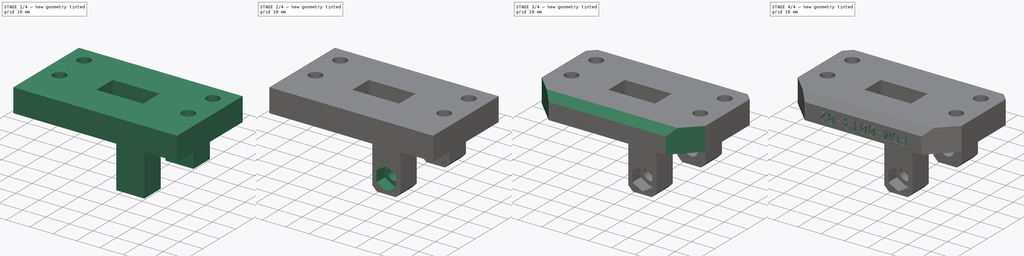
[diagram: build sequence overview — one tinted view per stage of 4, left to right]
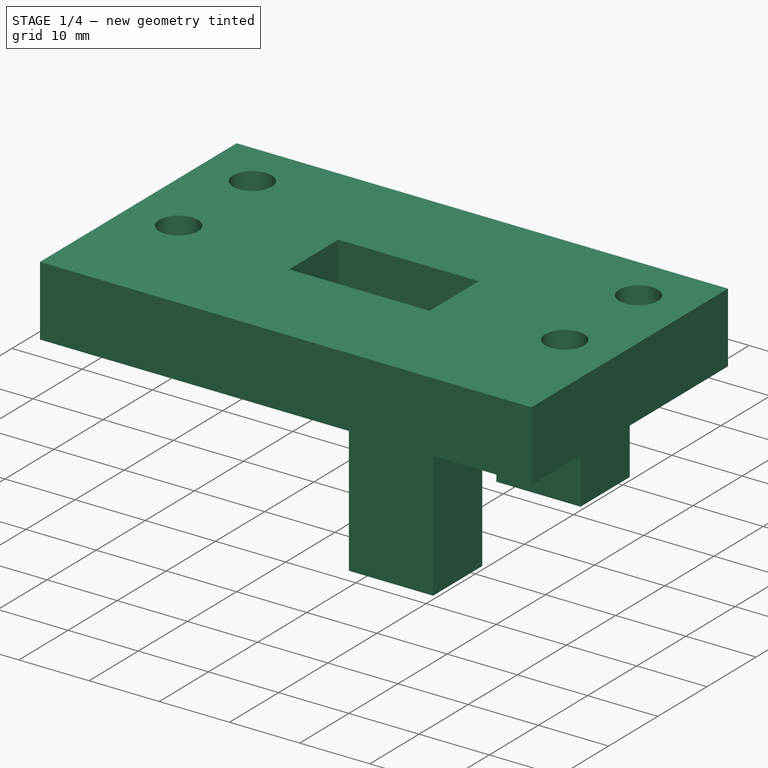
[diagram: stage 1 of 4 — iso view after this stage's code; geometry added in this stage tinted green]
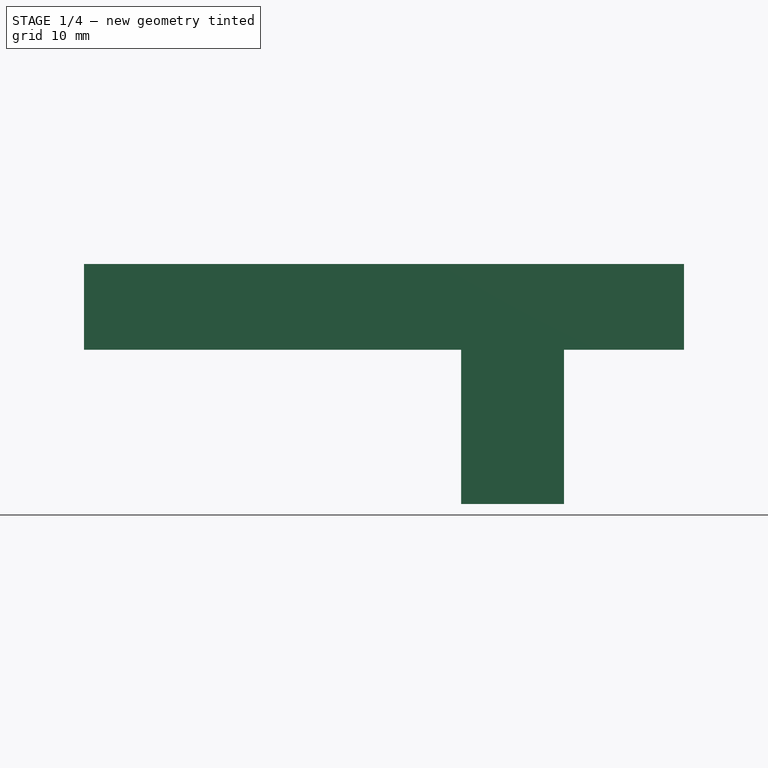
[diagram: stage 1 of 4 — front view after this stage's code; geometry added in this stage tinted green]
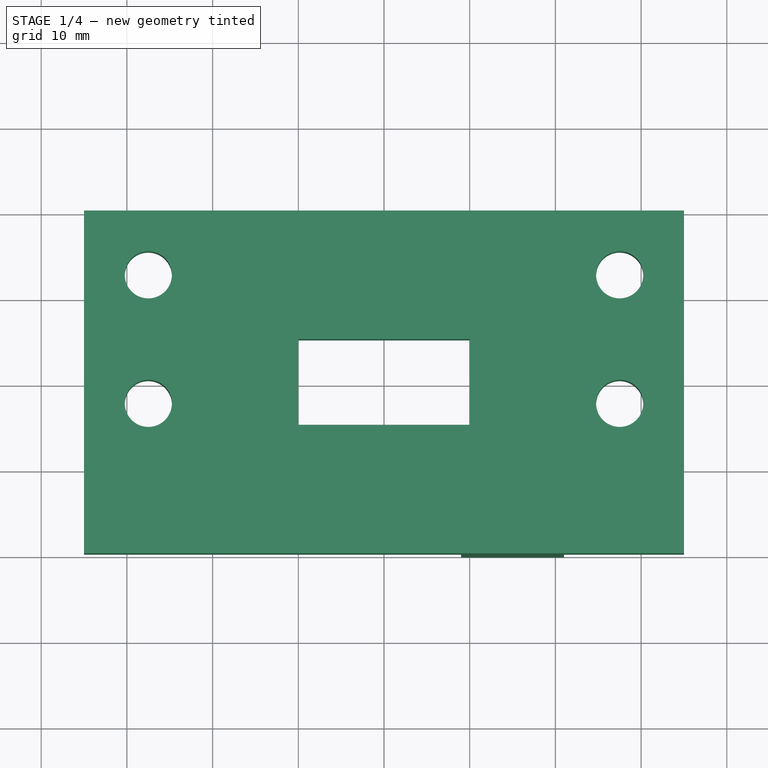
[diagram: stage 1 of 4 — top view after this stage's code; geometry added in this stage tinted green]
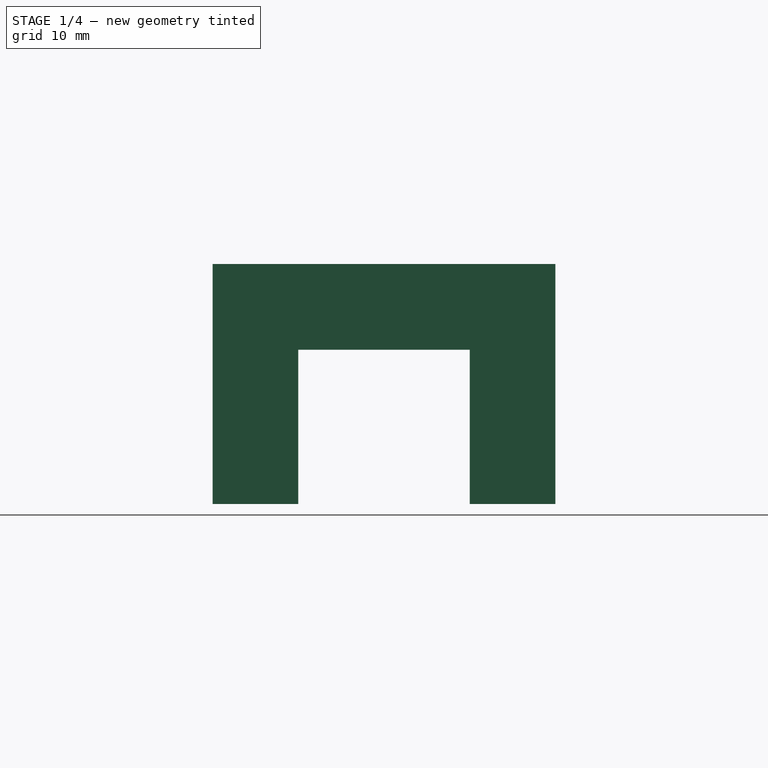
[diagram: stage 1 of 4 — right view after this stage's code; geometry added in this stage tinted green]
FCSTD DOCUMENT  (FreeCAD 0.19R24291 (Git))
Label: FDM-0013_x-idler-mount
License: All rights reserved
LicenseURL: http://en.wikipedia.org/wiki/All_rights_reserved
objects: Sketcher::SketchObject×6, PartDesign::Pocket×5, PartDesign::Chamfer×5, PartDesign::Pad×2, PartDesign::Plane×2, PartDesign::Fillet×1, Part::Part2DObjectPython×1, PartDesign::Body×1
note: 36 computed .brp shape members not serialized (recipe doc carries the construction recipe); baked Part::Feature solids carry a one-line shape summary decoded from their .brp

FEATURE [Sketcher::SketchObject] Sketch
  FullyConstrained = true
  MapMode = 5
  Support = -> [XY_Plane]
  sketch-geometry (12):
    g0: LineSegment StartX=-35 StartY=40 StartZ=0 EndX=35 EndY=40 EndZ=0
    g1: LineSegment StartX=35 StartY=40 StartZ=0 EndX=35 EndY=0 EndZ=0
    g2: LineSegment StartX=35 StartY=0 StartZ=0 EndX=-35 EndY=0 EndZ=0
    g3: LineSegment StartX=-35 StartY=0 StartZ=0 EndX=-35 EndY=40 EndZ=0
    g4: LineSegment StartX=-27.5 StartY=32.5 StartZ=0 EndX=27.5 EndY=32.5 EndZ=0
    g5: LineSegment StartX=27.5 StartY=32.5 StartZ=0 EndX=27.5 EndY=17.5 EndZ=0
    g6: LineSegment StartX=27.5 StartY=17.5 StartZ=0 EndX=-27.5 EndY=17.5 EndZ=0
    g7: LineSegment StartX=-27.5 StartY=17.5 StartZ=0 EndX=-27.5 EndY=32.5 EndZ=0
    g8: Circle CenterX=-27.5 CenterY=32.5 CenterZ=0 NormalX=0 NormalY=0 NormalZ=1 AngleXU=0 Radius=2.75
    g9: Circle CenterX=27.5 CenterY=32.5 CenterZ=0 NormalX=0 NormalY=0 NormalZ=1 AngleXU=0 Radius=2.75
    g10: Circle CenterX=27.5 CenterY=17.5 CenterZ=0 NormalX=0 NormalY=0 NormalZ=1 AngleXU=0 Radius=2.75
    g11: Circle CenterX=-27.5 CenterY=17.5 CenterZ=0 NormalX=0 NormalY=0 NormalZ=1 AngleXU=0 Radius=2.75
  constraints (30):
    c: Coincident(g0,g1)
    c: Coincident(g1,g2)
    c: Coincident(g2,g3)
    c: Coincident(g3,g0)
    c: Horizontal(g0)
    c: Vertical(g1)
    c: Vertical(g3)
    c: Coincident(g4,g5)
    c: Coincident(g5,g6)
    c: Coincident(g6,g7)
    c: Coincident(g7,g4)
    c: Horizontal(g6)
    c: Vertical(g5)
    c: Vertical(g7)
    c: Symmetric(g1,g2,g-2)
    c: Symmetric(g4,g4,g-2)
    c: PointOnObject(g-1,g2)
    c: DistanceX(g2,g2) = 70
    c: DistanceY(g3,g3) = 40
    c: DistanceX(g6,g6) = 55
    c: DistanceY(g5,g5) = 15
    c: DistanceY(g4,g0) = 7.5
    c: Coincident(g8,g4)
    c: Coincident(g9,g4)
    c: Coincident(g10,g5)
    c: Coincident(g11,g6)
    c: Diameter(g8) = 5.5
    c: Diameter(g9) = 5.5
    c: Diameter(g11) = 5.5
    c: Diameter(g10) = 5.5
FEATURE [PartDesign::Pad] Pad
  AllowMultiFace = false
  Direction = (1,1,1)
  Length = 10
  Length2 = 100
  Profile = -> Sketch
  Type = 0
FEATURE [Sketcher::SketchObject] Sketch001
  FullyConstrained = true
  MapMode = 5
  Support = -> [XY_Plane]
  sketch-geometry (9):
    g0: LineSegment StartX=9 StartY=0 StartZ=0 EndX=21 EndY=0 EndZ=0
    g1: LineSegment StartX=21 StartY=0 StartZ=0 EndX=21 EndY=10 EndZ=0
    g2: LineSegment StartX=21 StartY=10 StartZ=0 EndX=9 EndY=10 EndZ=0
    g3: LineSegment StartX=9 StartY=10 StartZ=0 EndX=9 EndY=0 EndZ=0
    g4: LineSegment StartX=9 StartY=30 StartZ=0 EndX=21 EndY=30 EndZ=0
    g5: LineSegment StartX=21 StartY=30 StartZ=0 EndX=21 EndY=40 EndZ=0
    g6: LineSegment StartX=21 StartY=40 StartZ=0 EndX=9 EndY=40 EndZ=0
    g7: LineSegment StartX=9 StartY=40 StartZ=0 EndX=9 EndY=30 EndZ=0
    g8: LineSegment StartX=15 StartY=0 StartZ=0 EndX=15 EndY=40 EndZ=0
  constraints (26):
    c: Coincident(g0,g1)
    c: Coincident(g1,g2)
    c: Coincident(g2,g3)
    c: Coincident(g3,g0)
    c: Horizontal(g0)
    c: Horizontal(g2)
    c: Vertical(g1)
    c: Vertical(g3)
    c: PointOnObject(g0,g-1)
    c: DistanceY(g1,g1) = 10
    c: DistanceX(g2,g2) = 12
    c: Coincident(g4,g5)
    c: Coincident(g5,g6)
    c: Coincident(g6,g7)
    c: Coincident(g7,g4)
    c: Horizontal(g6)
    c: Vertical(g5)
    c: Vertical(g7)
    c: DistanceX(g6,g6) = 12
    c: DistanceY(g-1,g6) = 40
    c: DistanceY(g5,g5) = 10
    c: PointOnObject(g8,g-1)
    c: DistanceY(g8,g8) = 40
    c: DistanceX(g-1,g8) = 15
    c: Symmetric(g0,g0,g8)
    c: Symmetric(g4,g4,g8)
FEATURE [PartDesign::Pad] Pad001
  AllowMultiFace = false
  BaseFeature = -> Pad
  Direction = (1,1,1)
  Length = 18
  Length2 = 100
  Profile = -> Sketch001
  Reversed = true
  Type = 0
FEATURE [Sketcher::SketchObject] Sketch002
  FullyConstrained = true
  MapMode = 5
  Support = -> [XY_Plane]
  sketch-geometry (4):
    g0: LineSegment StartX=-10 StartY=15 StartZ=0 EndX=10 EndY=15 EndZ=0
    g1: LineSegment StartX=10 StartY=15 StartZ=0 EndX=10 EndY=25 EndZ=0
    g2: LineSegment StartX=10 StartY=25 StartZ=0 EndX=-10 EndY=25 EndZ=0
    g3: LineSegment StartX=-10 StartY=25 StartZ=0 EndX=-10 EndY=15 EndZ=0
  constraints (11):
    c: Coincident(g0,g1)
    c: Coincident(g1,g2)
    c: Coincident(g2,g3)
    c: Coincident(g3,g0)
    c: Horizontal(g2)
    c: Vertical(g1)
    c: Vertical(g3)
    c: DistanceX(g0,g0) = 20
    c: DistanceY(g1,g1) = 10
    c: Symmetric(g0,g0,g-2)
    c: DistanceY(g-1,g0) = 15
FEATURE [PartDesign::Pocket] Pocket
  AllowMultiFace = false
  BaseFeature = -> Pad001
  Length = 15
  Length2 = 10
  Profile = -> Sketch002
  Type = 4
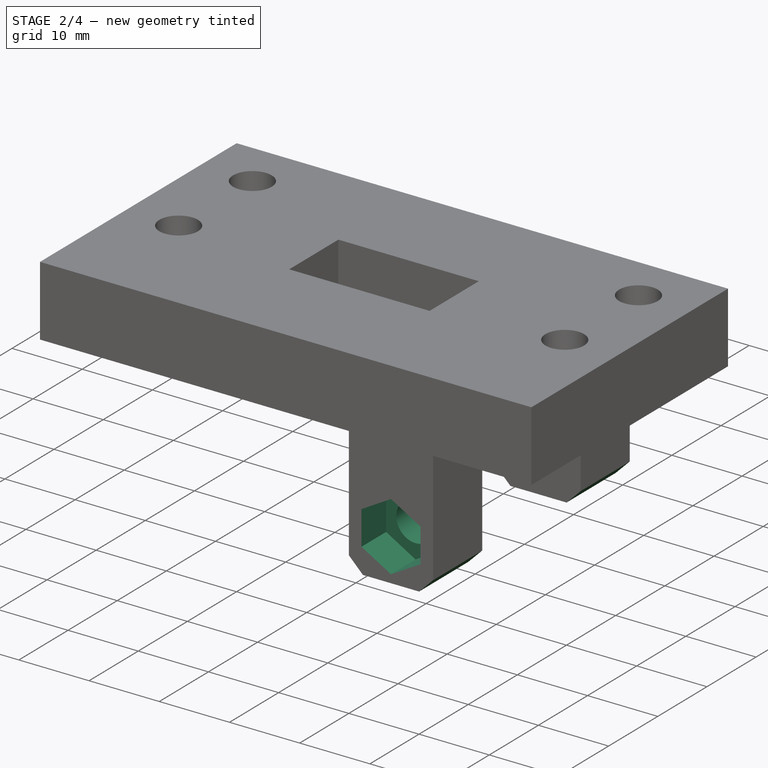
[diagram: stage 2 of 4 — iso view after this stage's code; geometry added in this stage tinted green]
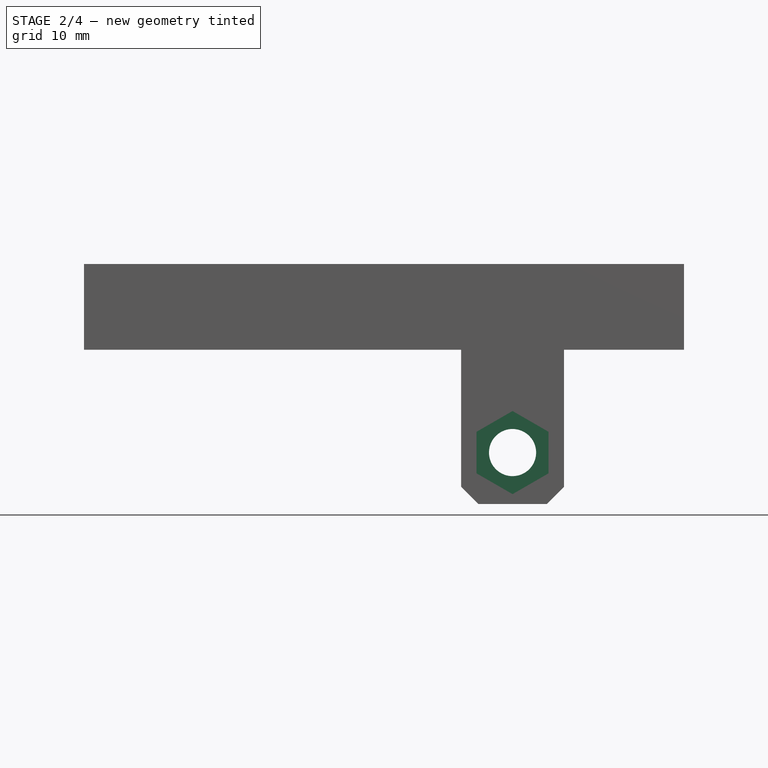
[diagram: stage 2 of 4 — front view after this stage's code; geometry added in this stage tinted green]
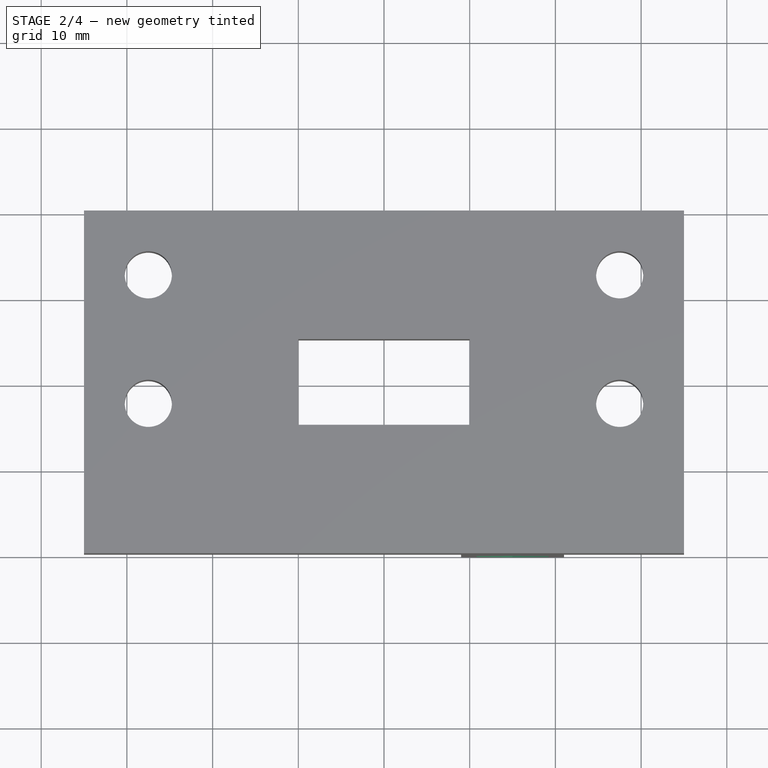
[diagram: stage 2 of 4 — top view after this stage's code; geometry added in this stage tinted green]
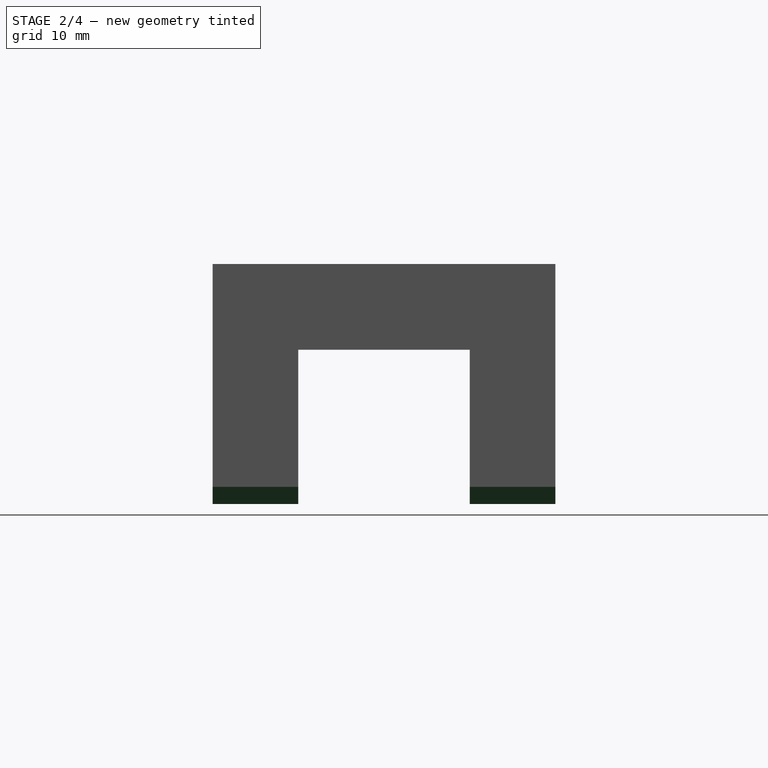
[diagram: stage 2 of 4 — right view after this stage's code; geometry added in this stage tinted green]
FEATURE [PartDesign::Plane] DatumPlane
  Length = 81.8322
  MapMode = 5
  Placement = pos=(0,40,0) rot=(0,0.707107,0.707107;3.14159rad)
  ResizeMode = 0
  Support = -> [Pocket]
  Width = 61.8322
FEATURE [Sketcher::SketchObject] Sketch003
  FullyConstrained = true
  MapMode = 5
  Placement = pos=(0,40,0) rot=(0,0.707107,0.707107;3.14159rad)
  Support = -> [DatumPlane]
  sketch-geometry (1):
    g0: Circle CenterX=-15 CenterY=-12 CenterZ=0 NormalX=0 NormalY=0 NormalZ=1 AngleXU=0 Radius=2.75
  constraints (3):
    c: Diameter(g0) = 5.5
    c: DistanceY(g0,g-1) = 12
    c: DistanceX(g0,g-1) = 15
FEATURE [PartDesign::Pocket] Pocket001
  AllowMultiFace = false
  BaseFeature = -> Pocket
  Length = 40
  Length2 = 100
  Profile = -> Sketch003
  Type = 0
FEATURE [Sketcher::SketchObject] Sketch005
  FullyConstrained = true
  MapMode = 5
  Placement = pos=(0,0,0) rot=(1,0,0;1.5708rad)
  Support = -> [XZ_Plane]
  sketch-geometry (7):
    g0: LineSegment StartX=19.2 StartY=-14.4249 StartZ=0 EndX=19.2 EndY=-9.57513 EndZ=0
    g1: LineSegment StartX=19.2 StartY=-9.57513 StartZ=0 EndX=15 EndY=-7.15026 EndZ=0
    g2: LineSegment StartX=15 StartY=-7.15026 StartZ=0 EndX=10.8 EndY=-9.57513 EndZ=0
    g3: LineSegment StartX=10.8 StartY=-9.57513 StartZ=0 EndX=10.8 EndY=-14.4249 EndZ=0
    g4: LineSegment StartX=10.8 StartY=-14.4249 StartZ=0 EndX=15 EndY=-16.8497 EndZ=0
    g5: LineSegment StartX=15 StartY=-16.8497 StartZ=0 EndX=19.2 EndY=-14.4249 EndZ=0
    g6: Circle CenterX=15 CenterY=-12 CenterZ=0 NormalX=0 NormalY=0 NormalZ=1 AngleXU=0 Radius=4.84974
  constraints (17):
    c: Coincident(g0,g1)
    c: Coincident(g1,g2)
    c: Coincident(g2,g3)
    c: Coincident(g3,g4)
    c: Coincident(g4,g5)
    c: Coincident(g5,g0)
    c: Equal(g0, g1-g5) x5
    c: PointOnObject(g0,g6)
    c: PointOnObject(g1,g6)
    c: PointOnObject(g2,g6)
    c: PointOnObject(g3,g6)
    c: PointOnObject(g4,g6)
    c: PointOnObject(g5,g6)
    c: DistanceY(g6,g-1) = 12
    c: Vertical(g3)
    c: DistanceX(g2,g0) = 8.4
    c: DistanceX(g-1,g6) = 15
FEATURE [PartDesign::Pocket] Pocket003
  AllowMultiFace = false
  BaseFeature = -> Pocket001
  Length = 5
  Length2 = 100
  Profile = -> Sketch005
  Type = 0
FEATURE [PartDesign::Chamfer] Chamfer
  Angle = 45
  Base = -> Pocket003 [Edge56,Edge55,Edge45,Edge47]
  BaseFeature = -> Pocket003
  ChamferType = 0
  FlipDirection = false
  Size = 2
  Size2 = 1
  SupportTransform = false
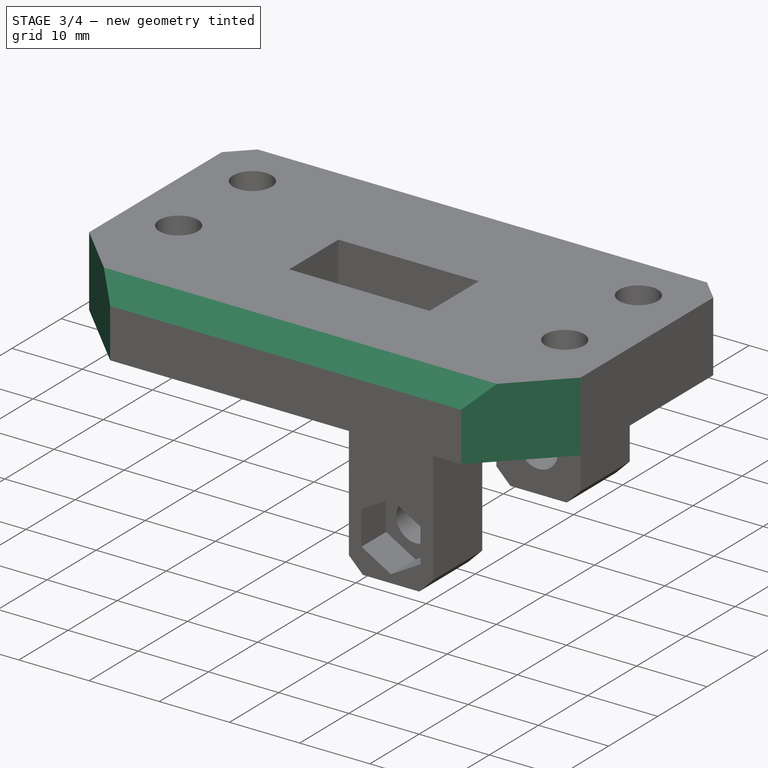
[diagram: stage 3 of 4 — iso view after this stage's code; geometry added in this stage tinted green]
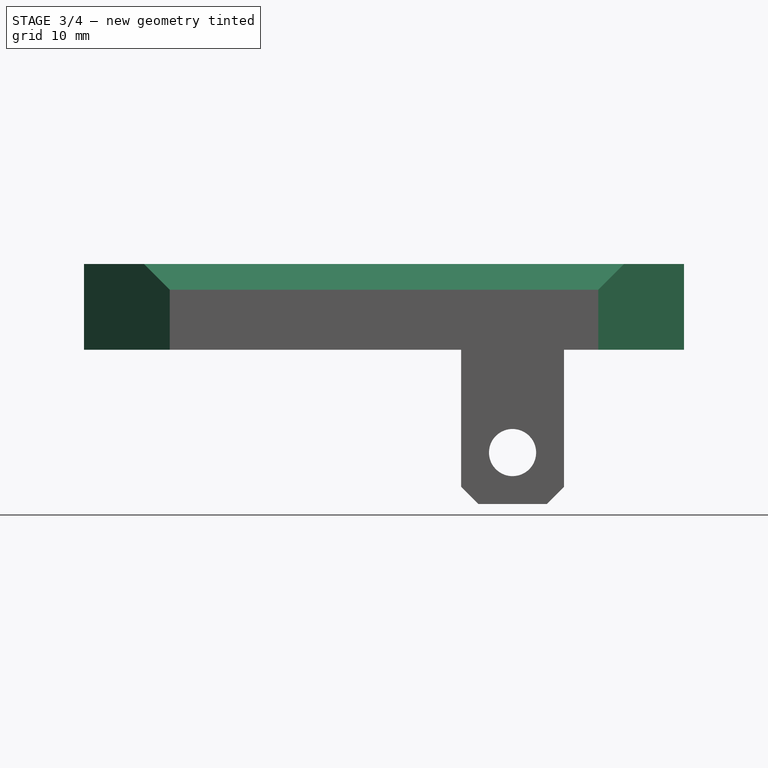
[diagram: stage 3 of 4 — front view after this stage's code; geometry added in this stage tinted green]
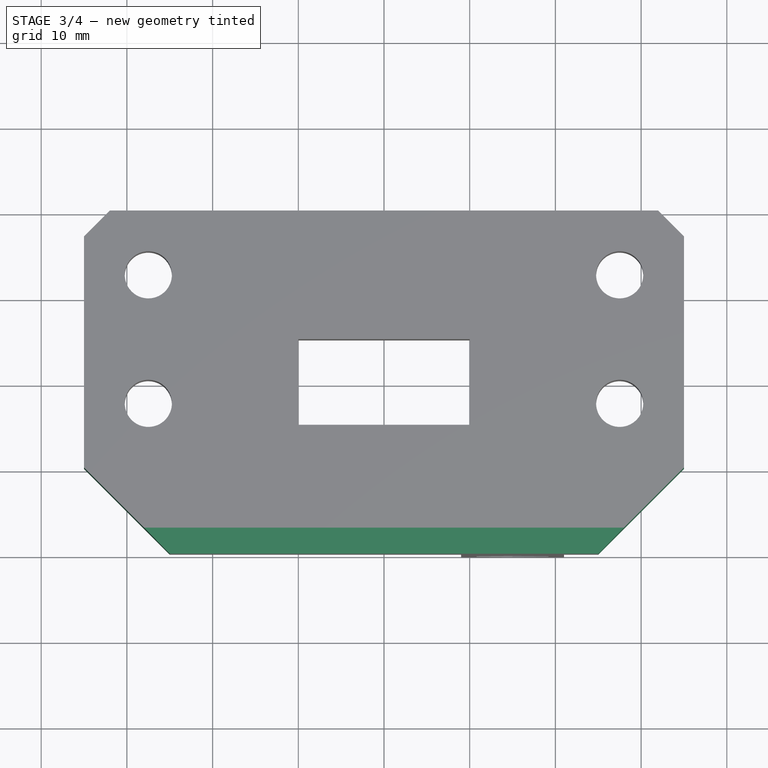
[diagram: stage 3 of 4 — top view after this stage's code; geometry added in this stage tinted green]
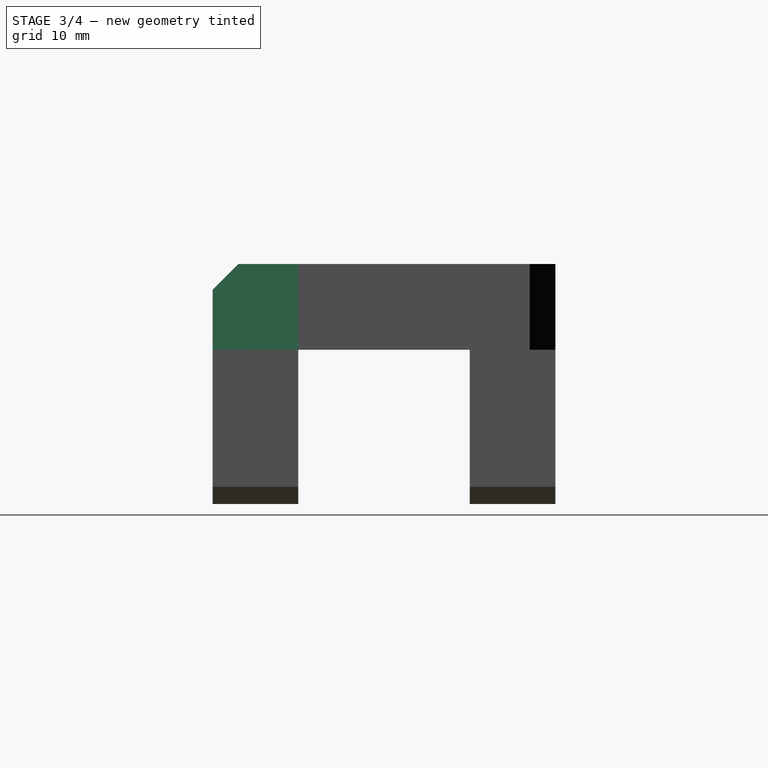
[diagram: stage 3 of 4 — right view after this stage's code; geometry added in this stage tinted green]
FEATURE [PartDesign::Chamfer] Chamfer001
  Angle = 45
  Base = -> Chamfer [Edge44,Edge42]
  BaseFeature = -> Chamfer
  ChamferType = 0
  FlipDirection = false
  Size = 10
  Size2 = 1
  SupportTransform = false
FEATURE [PartDesign::Chamfer] Chamfer002
  Angle = 45
  Base = -> Chamfer001 [Edge33]
  BaseFeature = -> Chamfer001
  ChamferType = 0
  FlipDirection = false
  Size = 3
  Size2 = 1
  SupportTransform = false
FEATURE [PartDesign::Chamfer] Chamfer003
  Angle = 45
  Base = -> Chamfer002 [Edge57,Edge44]
  BaseFeature = -> Chamfer002
  ChamferType = 0
  FlipDirection = false
  Size = 3
  Size2 = 1
  SupportTransform = false
FEATURE [Sketcher::SketchObject] Sketch006
  FullyConstrained = true
  MapMode = 5
  Support = -> [XY_Plane]
  sketch-geometry (1):
    g0: Circle CenterX=-15 CenterY=20 CenterZ=0 NormalX=0 NormalY=0 NormalZ=1 AngleXU=0 Radius=2.5
  constraints (3):
    c: DistanceX(g0,g-1) = 15
    c: Diameter(g0) = 5
    c: DistanceY(g-1,g0) = 20
FEATURE [PartDesign::Pocket] Pocket004
  AllowMultiFace = false
  BaseFeature = -> Chamfer003
  Length = 1.5
  Length2 = 100
  Profile = -> Sketch006
  Reversed = true
  Type = 0
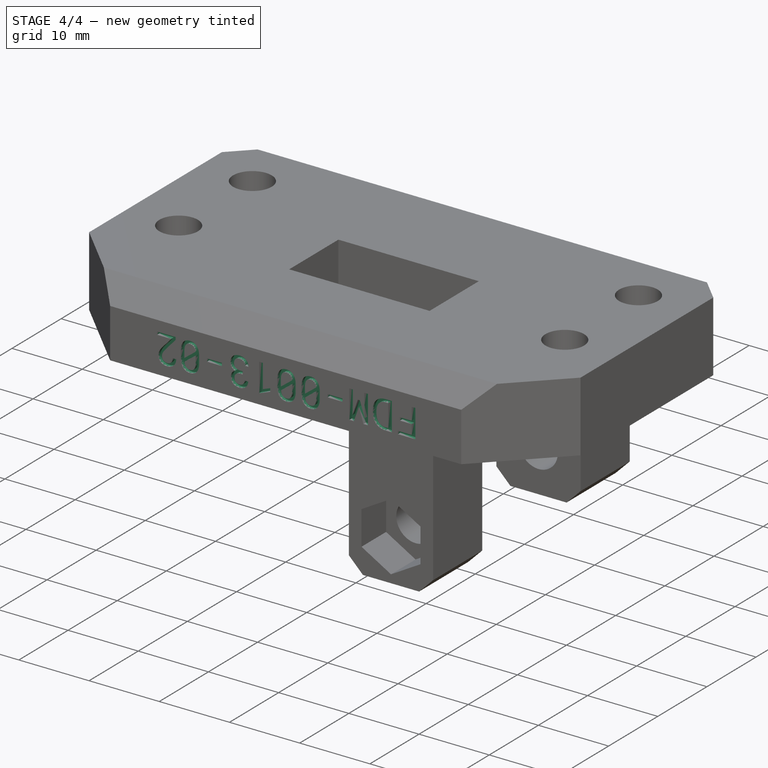
[diagram: stage 4 of 4 — iso view after this stage's code; geometry added in this stage tinted green]
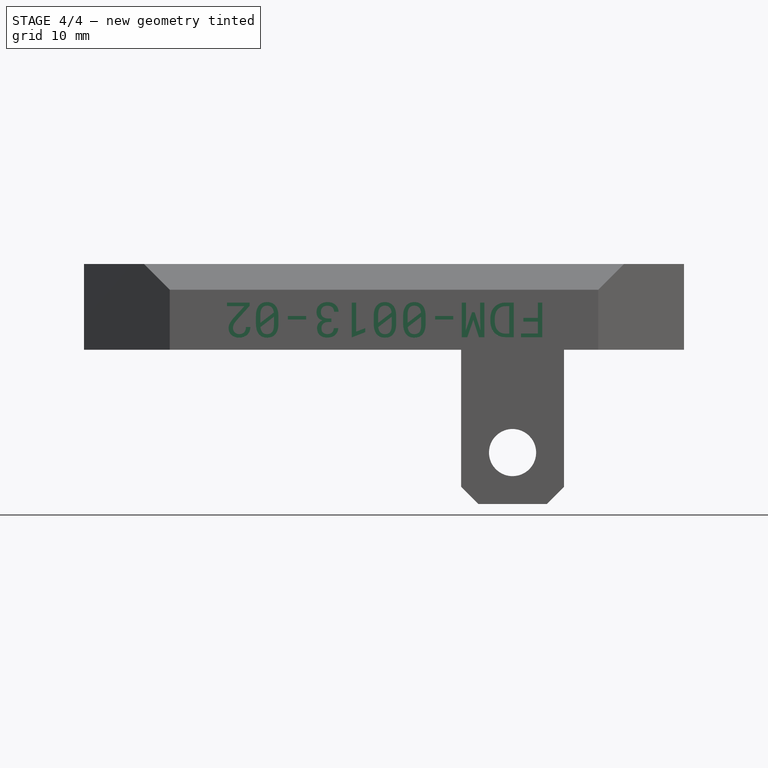
[diagram: stage 4 of 4 — front view after this stage's code; geometry added in this stage tinted green]
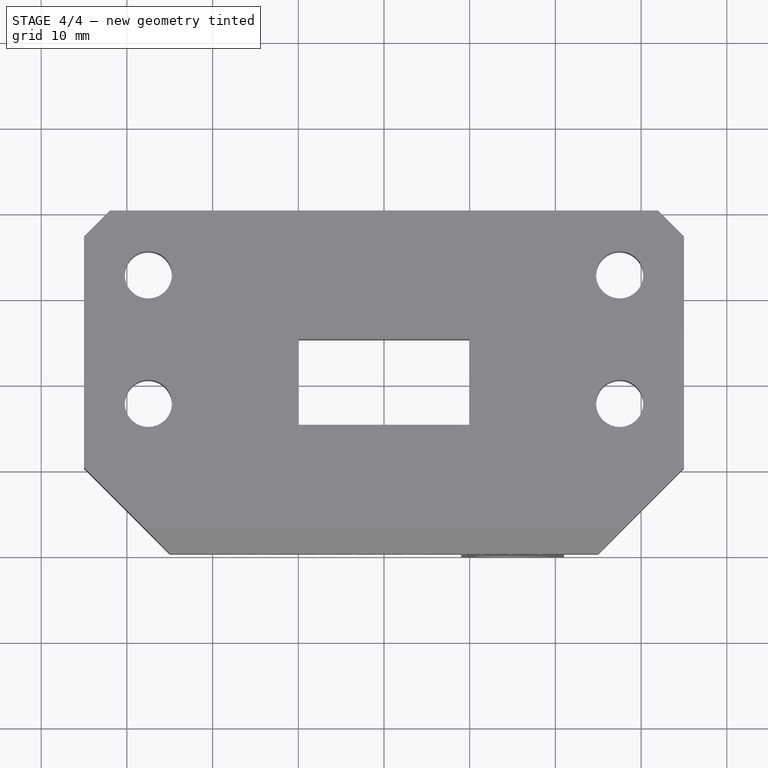
[diagram: stage 4 of 4 — top view after this stage's code; geometry added in this stage tinted green]
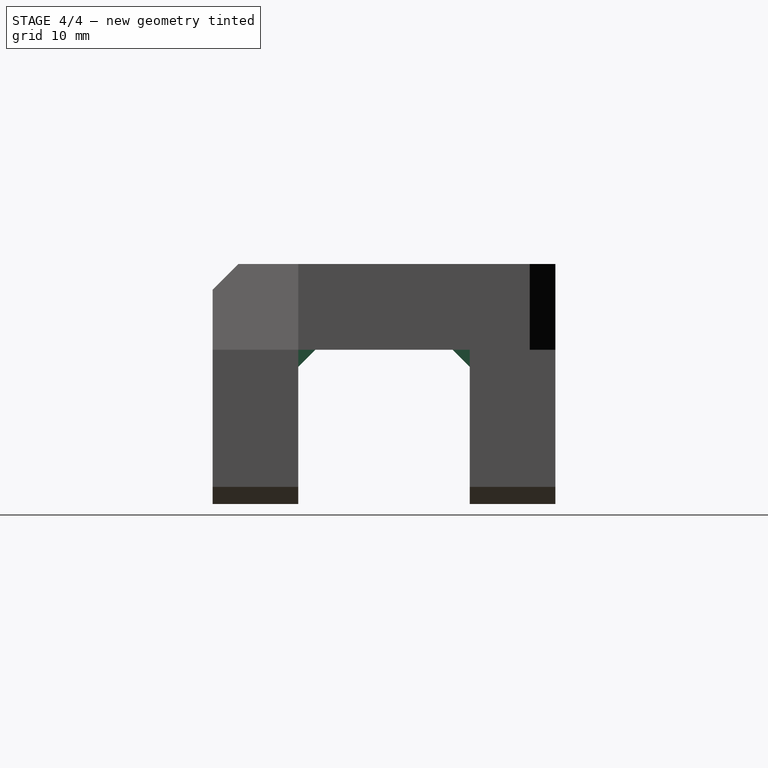
[diagram: stage 4 of 4 — right view after this stage's code; geometry added in this stage tinted green]
FEATURE [PartDesign::Fillet] Fillet
  Base = -> Pocket004 [Edge79]
  BaseFeature = -> Pocket004
  Radius = 1
  SupportTransform = false
FEATURE [Part::Part2DObjectPython] ShapeString  label="PN"  # Draft 2D object (typed FeaturePython)
  AttachmentOffset = pos=(19,5.5,0) rot=(0,0,1;3.14159rad)
  FontFile = ../../lib/fonts/RobotoMono-VariableFont_weight.ttf
  MapMode = 5
  Placement = pos=(19,1.2e-15,5.5) rot=(0,-0.707107,0.707107;3.14159rad)
  Size = 5
  String = FDM-0013-02
  Support = -> [Fillet]
  Tracking = 0
FEATURE [PartDesign::Chamfer] Chamfer004
  Angle = 45
  Base = -> Fillet [Edge13,Edge14]
  BaseFeature = -> Fillet
  ChamferType = 0
  FlipDirection = false
  Size = 2
  Size2 = 1
  SupportTransform = false
FEATURE [PartDesign::Pocket] Pocket005
  BaseFeature = -> Chamfer004
  Length = 0.5
  Length2 = 100
  Profile = -> ShapeString
  Type = 0
FEATURE [PartDesign::Plane] DatumPlane001  label="PrintPlane"
  Length = 83.4907
  MapMode = 5
  Placement = pos=(0,0,10) rot=(0,0,1;0rad)
  ResizeMode = 0
  Support = -> [Pocket005]
  Width = 78.4907
FEATURE [PartDesign::Body] Body
  Group = -> [Sketch,Pad,Sketch001,Pad001,Sketch002,Pocket,DatumPlane,Sketch003,Pocket001,Sketch005,Pocket003,Chamfer,Chamfer001,Chamfer002,Chamfer003,Sketch006,Pocket004,Fillet,DatumPlane001,ShapeString,Chamfer004,Pocket005]
  Origin = -> Origin
  Tip = -> Pocket005
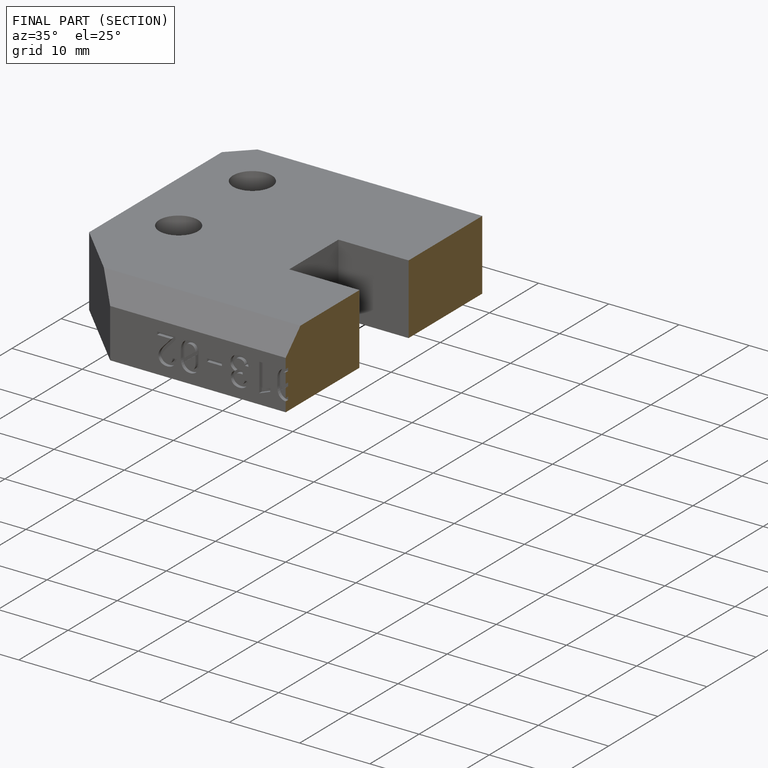
[diagram: finished part — half-section view (interior)]
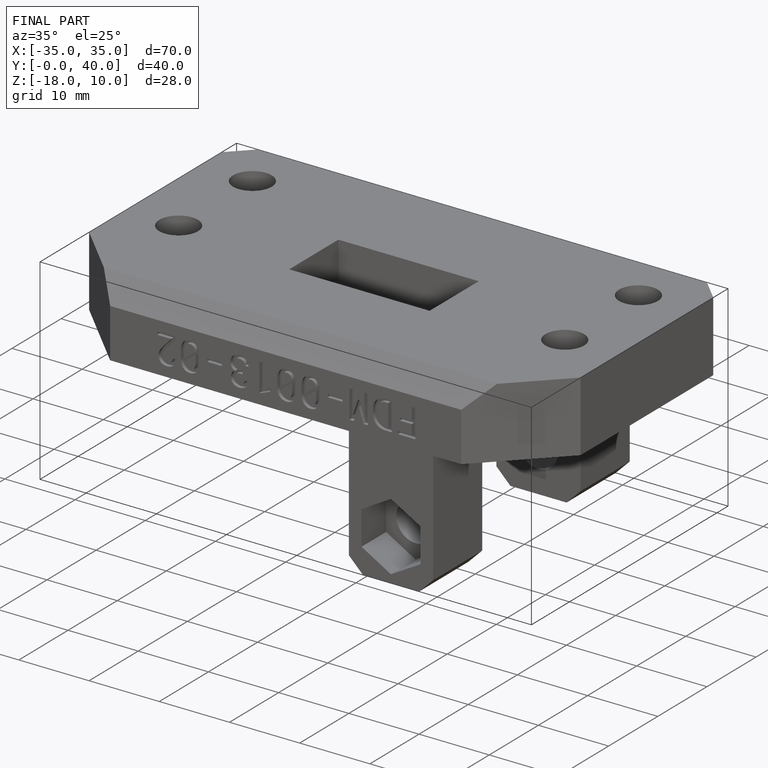
[diagram: finished part — iso view with bounding-box wireframe]
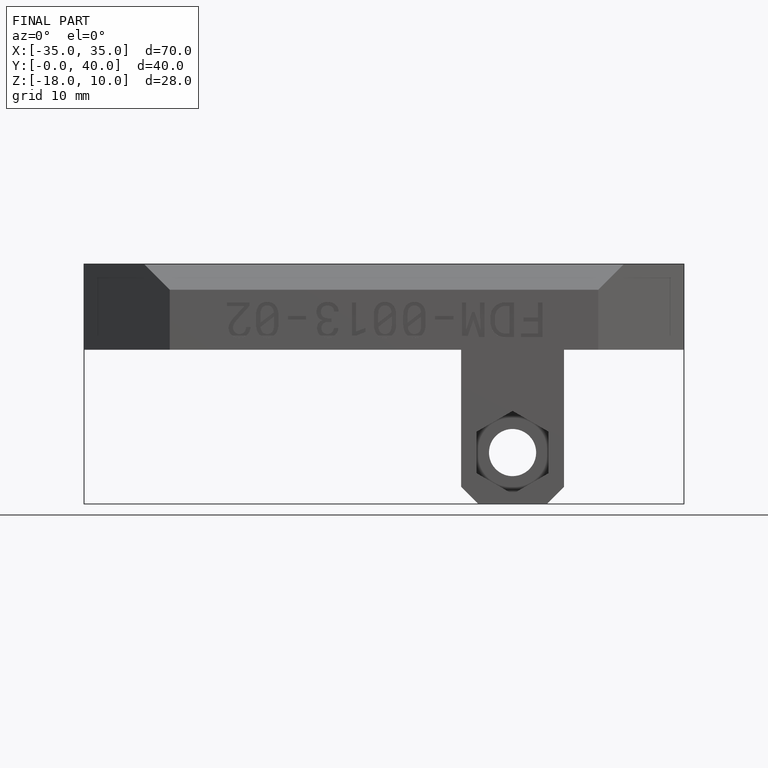
[diagram: finished part — front view with bounding-box wireframe]
